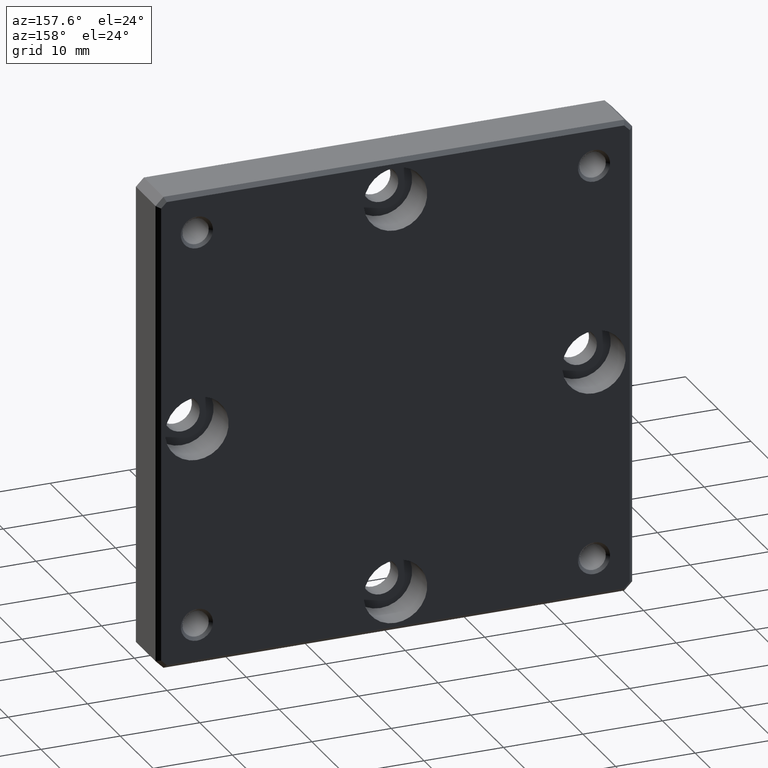
[diagram: clean part render]
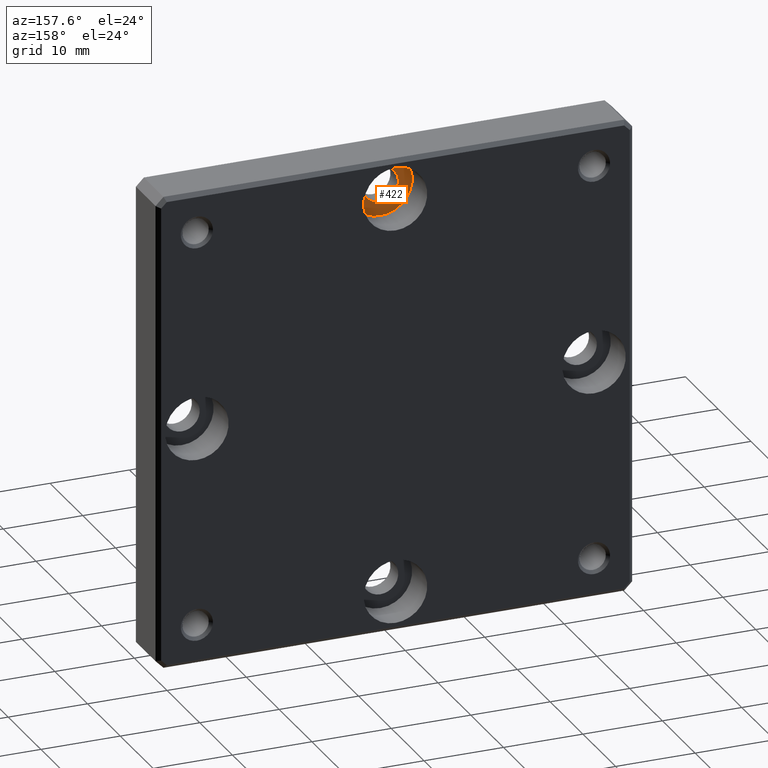
[diagram: same view with one face highlighted and labeled with its STEP entity id]
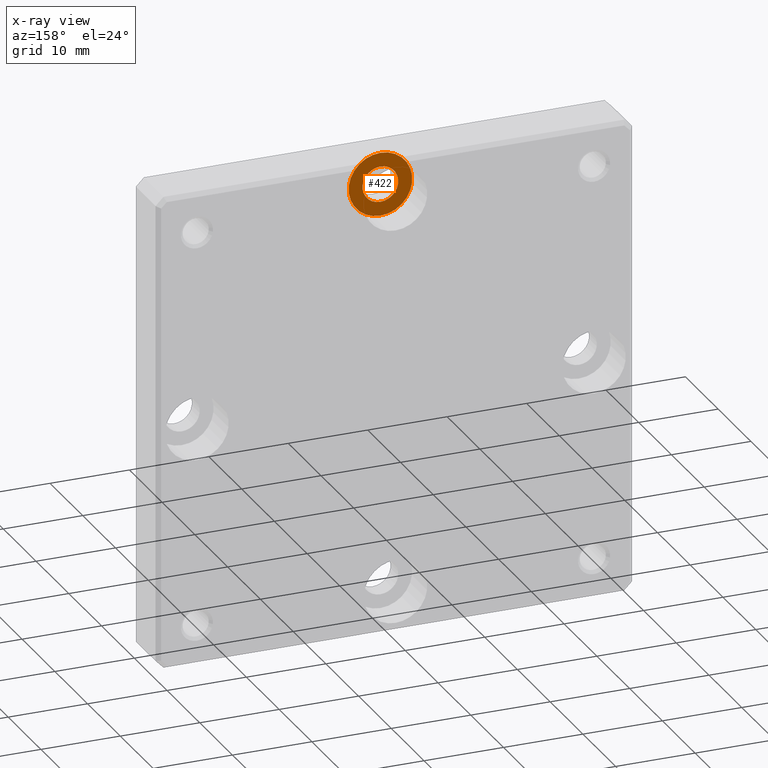
[diagram: x-ray of the same camera — body ghosted, the highlighted face saturated]
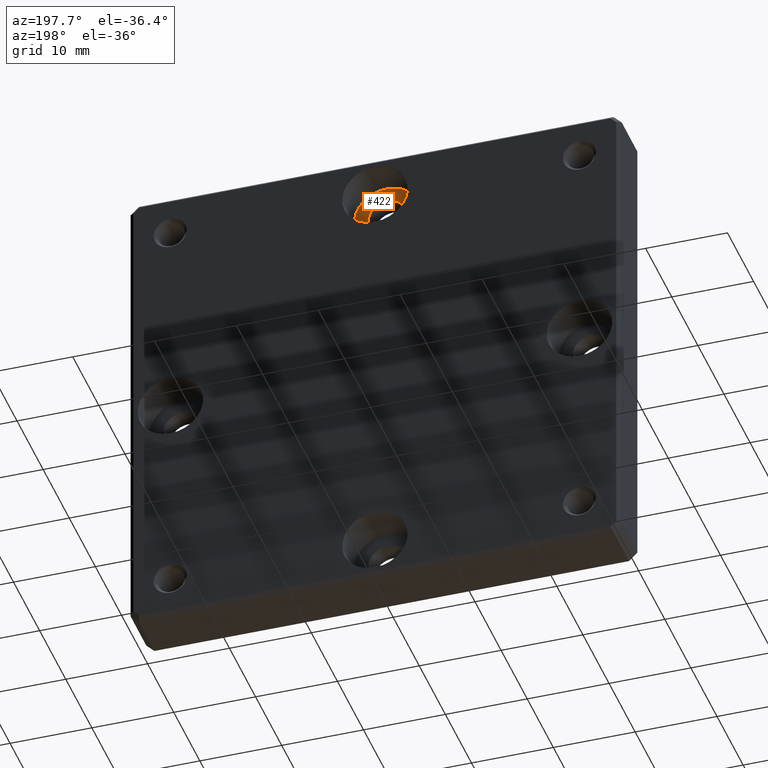
[diagram: same view with one face highlighted and labeled with its STEP entity id]
A machine part, auxiliary view. The second image highlights one B-rep face of the part: STEP entity #422.
The next image is the same camera in x-ray: the body ghosted, the highlighted face saturated — about 0% of this face is hidden behind the body in this view.
A second angle (auxiliary view) of the same face is appended — the face is thin or edge-on in the first view.
In plain terms, the highlighted planar face has unit normal (0, -1, 0).
Its self-contained STEP definition (entity closure, byte-faithful):
#49 = EDGE_LOOP ( 'NONE', ( #1021 ) ) ;
#64 = DIRECTION ( 'NONE',  ( 0.000000000000000000, 0.000000000000000000, 1.000000000000000000 ) ) ;
#71 = DIRECTION ( 'NONE',  ( 0.000000000000000000, -1.000000000000000000, 0.000000000000000000 ) ) ;
#159 = CIRCLE ( 'NONE', #881, 4.000000000000000000 ) ;
#168 = CARTESIAN_POINT ( 'NONE',  ( 0.000000000000000000, 2.400000000000000355, 29.00000000000000355 ) ) ;
#198 = CIRCLE ( 'NONE', #910, 2.249999999999998668 ) ;
#226 = VERTEX_POINT ( 'NONE', #168 ) ;
#319 = CARTESIAN_POINT ( 'NONE',  ( 0.000000000000000000, 2.400000000000000355, 27.25000000000000355 ) ) ;
#422 = ADVANCED_FACE ( 'NONE', ( #467, #864 ), #947, .F. ) ;
#467 = FACE_BOUND ( 'NONE', #1082, .T. ) ;
#595 = DIRECTION ( 'NONE',  ( 0.000000000000000000, -0.000000000000000000, -1.000000000000000000 ) ) ;
#608 = ORIENTED_EDGE ( 'NONE', *, *, #828, .F. ) ;
#609 = AXIS2_PLACEMENT_3D ( 'NONE', #940, #71, #595 ) ;
#828 = EDGE_CURVE ( 'NONE', #1198, #1198, #198, .T. ) ;
#864 = FACE_OUTER_BOUND ( 'NONE', #49, .T. ) ;
#865 = DIRECTION ( 'NONE',  ( -0.000000000000000000, 1.000000000000000000, -0.000000000000000000 ) ) ;
#881 = AXIS2_PLACEMENT_3D ( 'NONE', #1132, #865, #64 ) ;
#910 = AXIS2_PLACEMENT_3D ( 'NONE', #1255, #969, #1160 ) ;
#940 = CARTESIAN_POINT ( 'NONE',  ( 2.249999999999999112, 2.400000000000000355, 25.00000000000000355 ) ) ;
#947 = PLANE ( 'NONE',  #609 ) ;
#962 = EDGE_CURVE ( 'NONE', #226, #226, #159, .T. ) ;
#969 = DIRECTION ( 'NONE',  ( -0.000000000000000000, 1.000000000000000000, -0.000000000000000000 ) ) ;
#1021 = ORIENTED_EDGE ( 'NONE', *, *, #962, .T. ) ;
#1082 = EDGE_LOOP ( 'NONE', ( #608 ) ) ;
#1132 = CARTESIAN_POINT ( 'NONE',  ( 0.000000000000000000, 2.400000000000000355, 25.00000000000000355 ) ) ;
#1160 = DIRECTION ( 'NONE',  ( 0.000000000000000000, 0.000000000000000000, 1.000000000000000000 ) ) ;
#1198 = VERTEX_POINT ( 'NONE', #319 ) ;
#1255 = CARTESIAN_POINT ( 'NONE',  ( 0.000000000000000000, 2.400000000000000355, 25.00000000000000355 ) ) ;